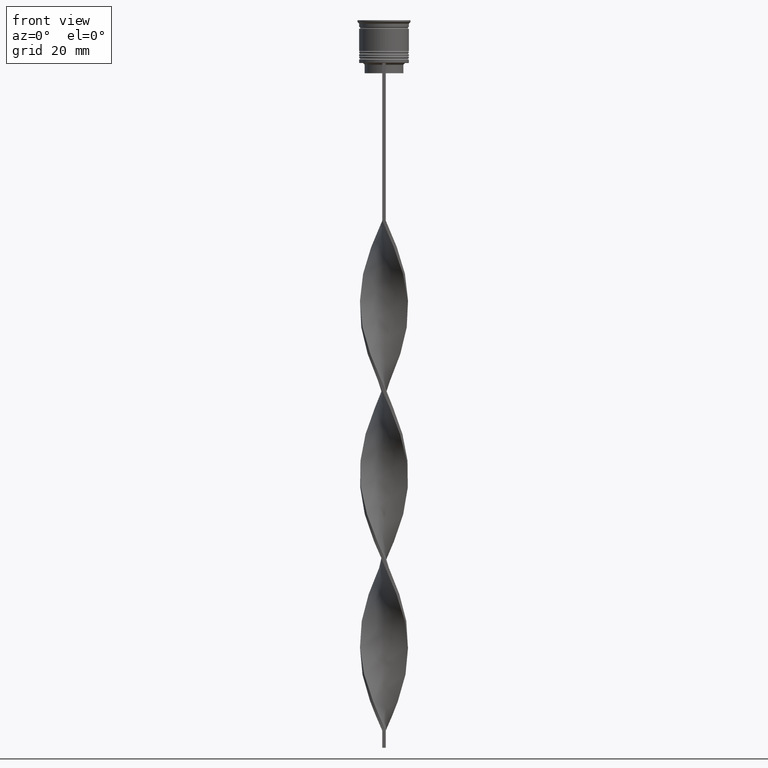
[diagram: clean part render]
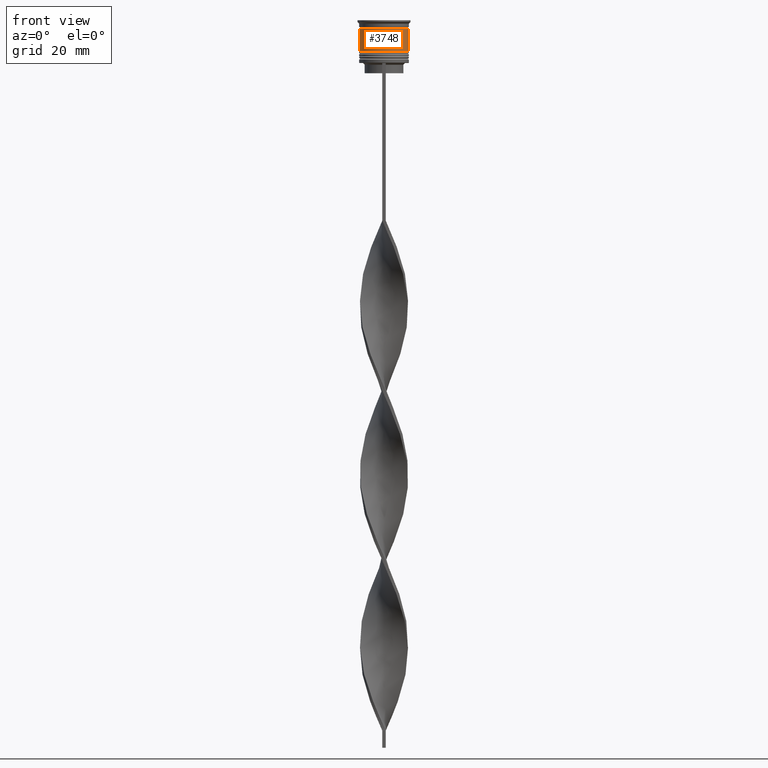
[diagram: same view with one face highlighted and labeled with its STEP entity id]
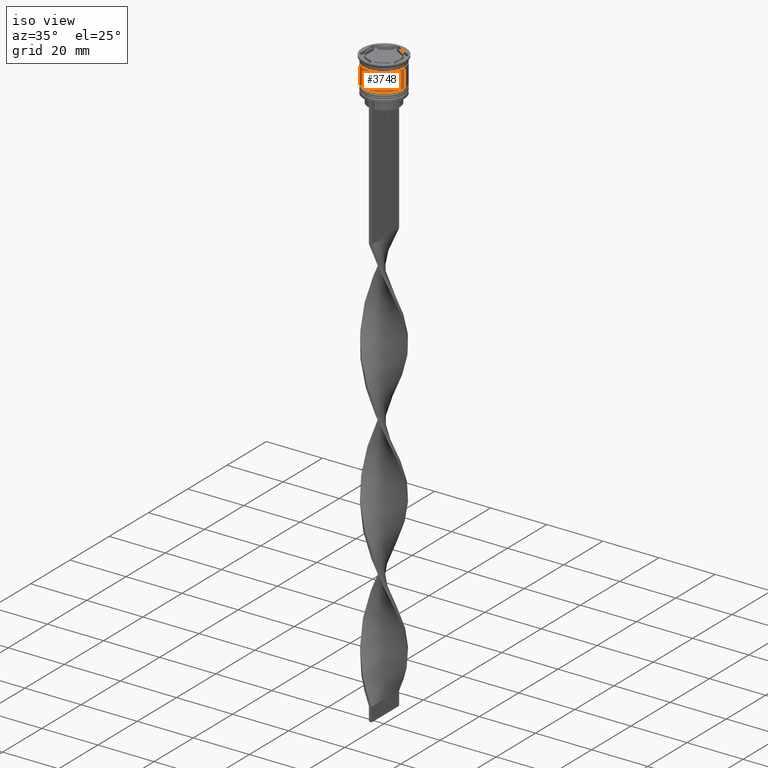
[diagram: same view with one face highlighted and labeled with its STEP entity id]
A machine part, front view. The second image highlights one B-rep face of the part: STEP entity #3748.
A second angle (iso view) of the same face is appended — the face is thin or edge-on in the first view.
In plain terms, the highlighted cylindrical surface (edge-blend (fillet) strip) has radius 7.25 mm, axis along (-0, -0, 1).
Its self-contained STEP definition (entity closure, byte-faithful):
#39 = DIRECTION ( 'NONE',  ( -0.000000000000000000, -0.000000000000000000, 1.000000000000000000 ) ) ;
#59 = CYLINDRICAL_SURFACE ( 'NONE', #2230, 7.249999999999999112 ) ;
#365 = DIRECTION ( 'NONE',  ( -0.000000000000000000, -0.000000000000000000, 1.000000000000000000 ) ) ;
#369 = AXIS2_PLACEMENT_3D ( 'NONE', #576, #39, #2635 ) ;
#458 = EDGE_CURVE ( 'NONE', #2914, #3523, #1782, .T. ) ;
#574 = EDGE_CURVE ( 'NONE', #2513, #2778, #3374, .T. ) ;
#576 = CARTESIAN_POINT ( 'NONE',  ( 0.000000000000000000, 0.000000000000000000, -9.000000000000001776 ) ) ;
#659 = DIRECTION ( 'NONE',  ( -0.000000000000000000, -0.000000000000000000, 1.000000000000000000 ) ) ;
#735 = ORIENTED_EDGE ( 'NONE', *, *, #3610, .F. ) ;
#877 = CARTESIAN_POINT ( 'NONE',  ( -7.249999999999999112, 8.878689293818310074E-16, 0.000000000000000000 ) ) ;
#1008 = DIRECTION ( 'NONE',  ( -0.000000000000000000, -0.000000000000000000, 1.000000000000000000 ) ) ;
#1011 = CARTESIAN_POINT ( 'NONE',  ( -7.249999999999997335, 8.878689293818308102E-16, -2.500000000000000444 ) ) ;
#1228 = CARTESIAN_POINT ( 'NONE',  ( 0.000000000000000000, 0.000000000000000000, 0.000000000000000000 ) ) ;
#1236 = CIRCLE ( 'NONE', #3327, 7.249999999999997335 ) ;
#1475 = CIRCLE ( 'NONE', #369, 7.250000000000000888 ) ;
#1496 = EDGE_LOOP ( 'NONE', ( #3281, #3424, #2897, #735 ) ) ;
#1507 = DIRECTION ( 'NONE',  ( -0.000000000000000000, -0.000000000000000000, 1.000000000000000000 ) ) ;
#1521 = FACE_OUTER_BOUND ( 'NONE', #1496, .T. ) ;
#1558 = CARTESIAN_POINT ( 'NONE',  ( -7.250000000000000888, 8.878689293818312046E-16, -9.000000000000001776 ) ) ;
#1782 = LINE ( 'NONE', #877, #2242 ) ;
#1843 = DIRECTION ( 'NONE',  ( 1.000000000000000000, 0.000000000000000000, 0.000000000000000000 ) ) ;
#2230 = AXIS2_PLACEMENT_3D ( 'NONE', #1228, #365, #3369 ) ;
#2242 = VECTOR ( 'NONE', #1507, 1000.000000000000000 ) ;
#2513 = VERTEX_POINT ( 'NONE', #3646 ) ;
#2635 = DIRECTION ( 'NONE',  ( 1.000000000000000000, 0.000000000000000000, 0.000000000000000000 ) ) ;
#2726 = CARTESIAN_POINT ( 'NONE',  ( 0.000000000000000000, 0.000000000000000000, -2.500000000000000444 ) ) ;
#2739 = CARTESIAN_POINT ( 'NONE',  ( 7.249999999999999112, 0.000000000000000000, 0.000000000000000000 ) ) ;
#2778 = VERTEX_POINT ( 'NONE', #3215 ) ;
#2786 = EDGE_CURVE ( 'NONE', #2914, #2513, #1475, .T. ) ;
#2897 = ORIENTED_EDGE ( 'NONE', *, *, #574, .T. ) ;
#2914 = VERTEX_POINT ( 'NONE', #1558 ) ;
#3215 = CARTESIAN_POINT ( 'NONE',  ( 7.249999999999997335, 0.000000000000000000, -2.500000000000000444 ) ) ;
#3281 = ORIENTED_EDGE ( 'NONE', *, *, #458, .F. ) ;
#3327 = AXIS2_PLACEMENT_3D ( 'NONE', #2726, #659, #1843 ) ;
#3369 = DIRECTION ( 'NONE',  ( 1.000000000000000000, 0.000000000000000000, 0.000000000000000000 ) ) ;
#3374 = LINE ( 'NONE', #2739, #3712 ) ;
#3424 = ORIENTED_EDGE ( 'NONE', *, *, #2786, .T. ) ;
#3523 = VERTEX_POINT ( 'NONE', #1011 ) ;
#3610 = EDGE_CURVE ( 'NONE', #3523, #2778, #1236, .T. ) ;
#3646 = CARTESIAN_POINT ( 'NONE',  ( 7.250000000000000888, 0.000000000000000000, -9.000000000000001776 ) ) ;
#3712 = VECTOR ( 'NONE', #1008, 1000.000000000000000 ) ;
#3748 = ADVANCED_FACE ( 'NONE', ( #1521 ), #59, .T. ) ;